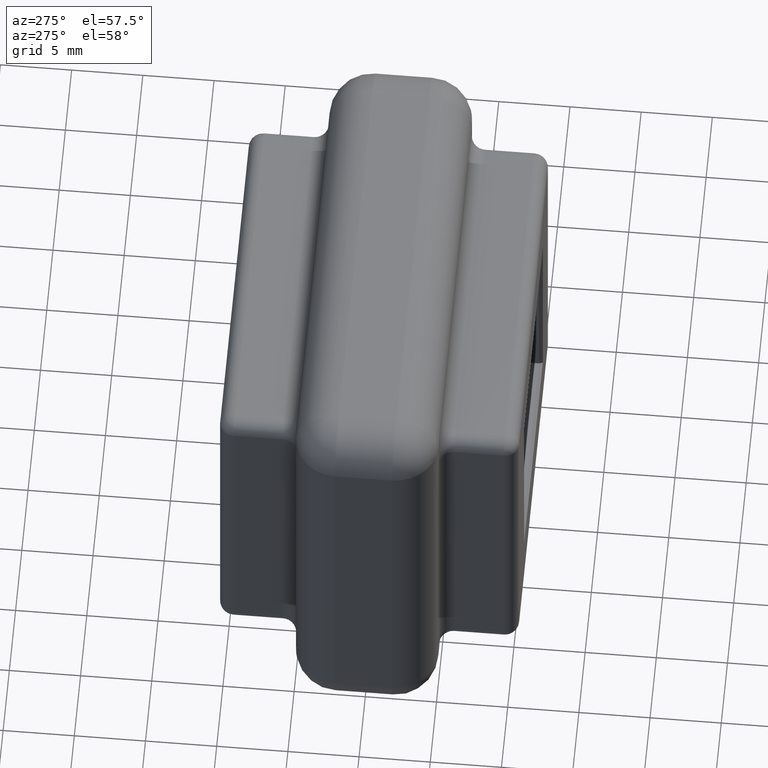
[diagram: clean part render]
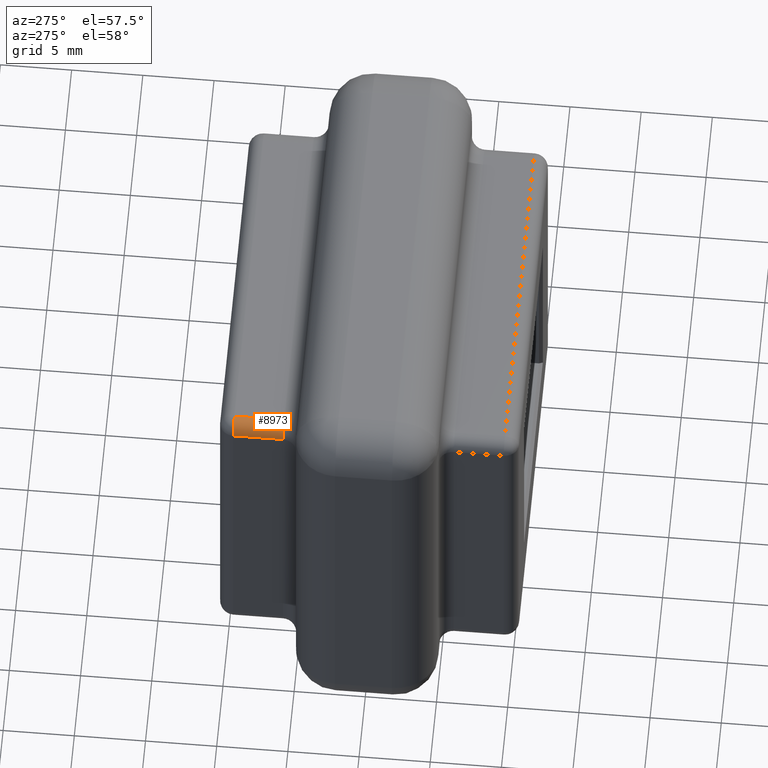
[diagram: same view with one face highlighted and labeled with its STEP entity id]
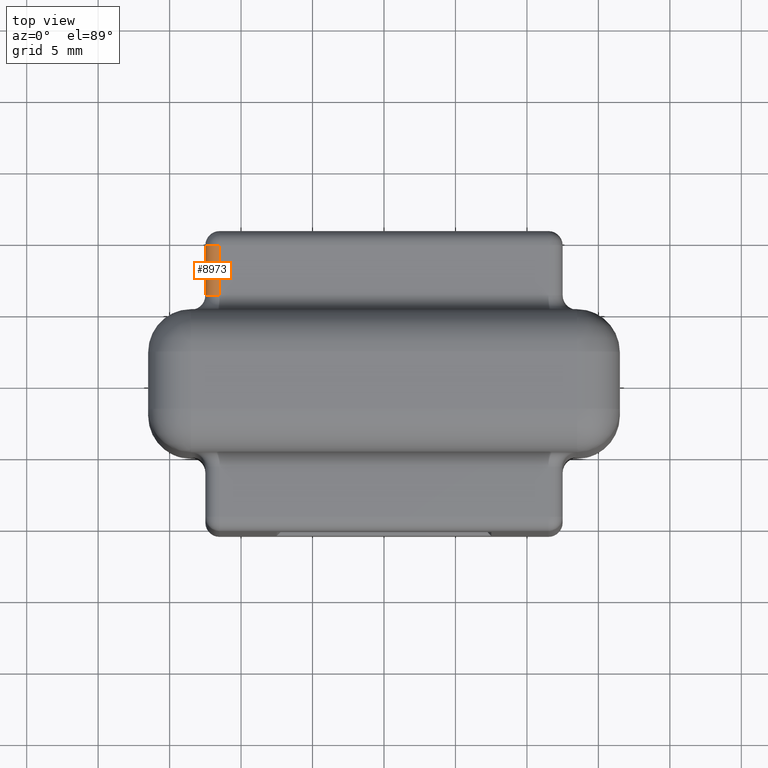
[diagram: same view with one face highlighted and labeled with its STEP entity id]
A machine part, auxiliary view. The second image highlights one B-rep face of the part: STEP entity #8973.
A second angle (top view) of the same face is appended — the face is thin or edge-on in the first view.
In plain terms, the highlighted cylindrical surface (edge-blend (fillet) strip) has radius 1 mm, axis along (0, -1, 0).
Its self-contained STEP definition (entity closure, byte-faithful):
#178 = AXIS2_PLACEMENT_3D ( 'NONE', #6608, #9217, #8258 ) ;
#367 = ORIENTED_EDGE ( 'NONE', *, *, #6996, .F. ) ;
#544 = CARTESIAN_POINT ( 'NONE',  ( -12.49999999999999600, 9.499999999999998200, 11.50000000000000400 ) ) ;
#1085 = CARTESIAN_POINT ( 'NONE',  ( -12.49999999999999600, 6.000000000000000000, 11.50000000000000400 ) ) ;
#1743 = EDGE_CURVE ( 'NONE', #5726, #10351, #2808, .T. ) ;
#1800 = CIRCLE ( 'NONE', #11395, 1.000000000000000900 ) ;
#2075 = CARTESIAN_POINT ( 'NONE',  ( -11.49999999999999800, 10.49999999999999800, 11.50000000000000400 ) ) ;
#2263 = LINE ( 'NONE', #3877, #5439 ) ;
#2808 = CIRCLE ( 'NONE', #178, 1.000000000000000900 ) ;
#3069 = DIRECTION ( 'NONE',  ( 0.0000000000000000000, 1.000000000000000000, 0.0000000000000000000 ) ) ;
#3877 = CARTESIAN_POINT ( 'NONE',  ( -11.49999999999999800, 10.49999999999999800, 12.50000000000000200 ) ) ;
#4211 = AXIS2_PLACEMENT_3D ( 'NONE', #2075, #7268, #10806 ) ;
#5439 = VECTOR ( 'NONE', #8261, 1000.000000000000000 ) ;
#5490 = EDGE_LOOP ( 'NONE', ( #9710, #9742, #6386, #367 ) ) ;
#5726 = VERTEX_POINT ( 'NONE', #544 ) ;
#5961 = EDGE_CURVE ( 'NONE', #7606, #6931, #1800, .T. ) ;
#6201 = CARTESIAN_POINT ( 'NONE',  ( -11.49999999999999800, 6.000000000000000000, 12.50000000000000200 ) ) ;
#6317 = DIRECTION ( 'NONE',  ( -0.0000000000000000000, 1.000000000000000000, -0.0000000000000000000 ) ) ;
#6386 = ORIENTED_EDGE ( 'NONE', *, *, #1743, .F. ) ;
#6608 = CARTESIAN_POINT ( 'NONE',  ( -11.49999999999999600, 9.499999999999998200, 11.50000000000000400 ) ) ;
#6931 = VERTEX_POINT ( 'NONE', #6201 ) ;
#6996 = EDGE_CURVE ( 'NONE', #7606, #5726, #9401, .T. ) ;
#7268 = DIRECTION ( 'NONE',  ( 0.0000000000000000000, -1.000000000000000000, 0.0000000000000000000 ) ) ;
#7393 = DIRECTION ( 'NONE',  ( 0.0000000000000000000, 0.0000000000000000000, 1.000000000000000000 ) ) ;
#7606 = VERTEX_POINT ( 'NONE', #1085 ) ;
#8258 = DIRECTION ( 'NONE',  ( 0.0000000000000000000, 0.0000000000000000000, 1.000000000000000000 ) ) ;
#8261 = DIRECTION ( 'NONE',  ( 0.0000000000000000000, -1.000000000000000000, 0.0000000000000000000 ) ) ;
#8405 = FACE_OUTER_BOUND ( 'NONE', #5490, .T. ) ;
#8821 = CARTESIAN_POINT ( 'NONE',  ( -12.49999999999999600, 10.49999999999999800, 11.50000000000000200 ) ) ;
#8830 = CYLINDRICAL_SURFACE ( 'NONE', #4211, 1.000000000000000900 ) ;
#8867 = VECTOR ( 'NONE', #6317, 1000.000000000000000 ) ;
#8973 = ADVANCED_FACE ( 'NONE', ( #8405 ), #8830, .T. ) ;
#9202 = CARTESIAN_POINT ( 'NONE',  ( -11.49999999999999800, 6.000000000000000000, 11.50000000000000400 ) ) ;
#9217 = DIRECTION ( 'NONE',  ( 0.0000000000000000000, 1.000000000000000000, 0.0000000000000000000 ) ) ;
#9401 = LINE ( 'NONE', #8821, #8867 ) ;
#9710 = ORIENTED_EDGE ( 'NONE', *, *, #5961, .T. ) ;
#9742 = ORIENTED_EDGE ( 'NONE', *, *, #10803, .F. ) ;
#9773 = CARTESIAN_POINT ( 'NONE',  ( -11.49999999999999800, 9.499999999999998200, 12.50000000000000200 ) ) ;
#10351 = VERTEX_POINT ( 'NONE', #9773 ) ;
#10803 = EDGE_CURVE ( 'NONE', #10351, #6931, #2263, .T. ) ;
#10806 = DIRECTION ( 'NONE',  ( 0.0000000000000000000, 0.0000000000000000000, -1.000000000000000000 ) ) ;
#11395 = AXIS2_PLACEMENT_3D ( 'NONE', #9202, #3069, #7393 ) ;